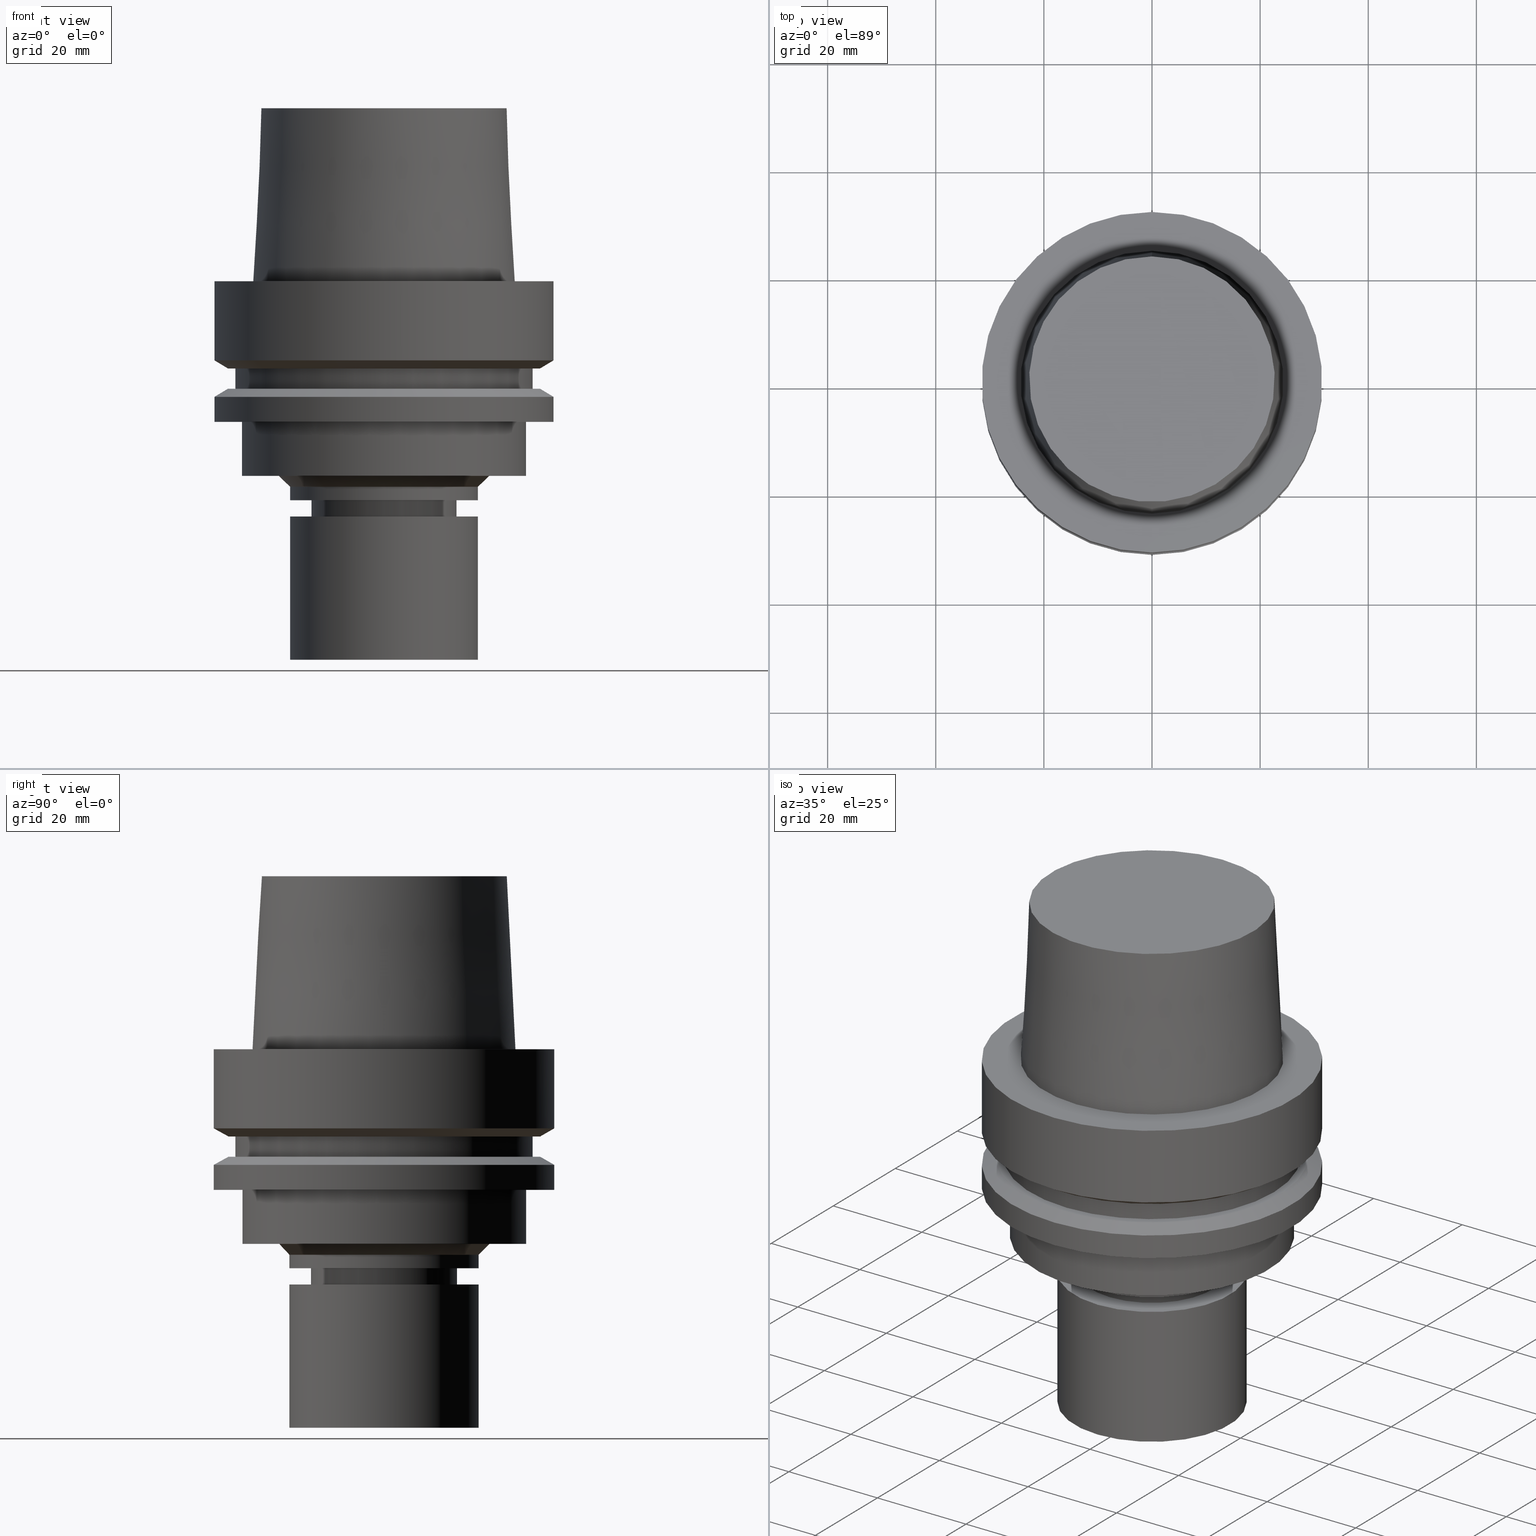
[diagram: canonical four-view strip — front | top / right | iso, engineering-drawing reading convention]
A machine part, canonical four-view strip (front | top / right | iso — engineering-drawing reading convention). The complete STEP part file that produces these views, byte-faithful:
ISO-10303-21;
HEADER;
FILE_DESCRIPTION((''),'1');
FILE_NAME('V:/90_\X2\53D65F9730C730FC30BF\X0\/00_\X2\6DE18DEF30C730FC30BF\X0\/ALL/HSK-BKUS\X2\52A05DE556F3\X0\_201801/HSK-A63-MEGAER/HSK-A63-MEGAER20-70NL.stp','2018-02-01T02:30:50',(''),(''),'Spatial Interop R21 SP3','Kubotek KeyCreator 2011 V10.0.2 (22737)',' ');
FILE_SCHEMA(('automotive_design'));
ENDSEC;
DATA;
#1=MECHANICAL_DESIGN_GEOMETRIC_PRESENTATION_REPRESENTATION(' ',(#14,#15,#16,#17,#18,#19,#20,#21,#22,#23,#24,#25,#26,#27,#28,#29,#30,#31,#32,#33,#34,#35,#36,#37,#38,#39,#40,#41,#42,#43,#44,#45,#46,#47,#48,#49,#50,#51,#52,#53,#54,#55,#56,#57,#58,#59,#60,#61),#10);
#2=PRODUCT_DEFINITION_CONTEXT('',#62,'design');
#3=APPLICATION_PROTOCOL_DEFINITION('INTERNATIONAL STANDARD','automotive_design',1994,#62);
#4=PRODUCT_CATEGORY_RELATIONSHIP('NONE','NONE',#63,#64);
#5=SHAPE_DEFINITION_REPRESENTATION(#65,#66);
#6=PRODUCT_DEFINITION_CONTEXT('',#67,'design');
#7=APPLICATION_PROTOCOL_DEFINITION('INTERNATIONAL STANDARD','automotive_design',1994,#67);
#8=PRODUCT_CATEGORY_RELATIONSHIP('NONE','NONE',#68,#69);
#9=SHAPE_DEFINITION_REPRESENTATION(#70,#71);
#10= (GEOMETRIC_REPRESENTATION_CONTEXT(3)GLOBAL_UNCERTAINTY_ASSIGNED_CONTEXT((#74))GLOBAL_UNIT_ASSIGNED_CONTEXT((#76,#77,#78))REPRESENTATION_CONTEXT('NONE','WORKSPACE'));
#14=STYLED_ITEM('',(#80,#81),#82);
#15=STYLED_ITEM('',(#83),#84);
#16=STYLED_ITEM('',(#85,#86),#87);
#17=STYLED_ITEM('',(#88),#89);
#18=STYLED_ITEM('',(#90),#91);
#19=STYLED_ITEM('',(#92),#93);
#20=STYLED_ITEM('',(#94),#95);
#21=STYLED_ITEM('',(#96,#97),#98);
#22=STYLED_ITEM('',(#99),#100);
#23=STYLED_ITEM('',(#101,#102),#103);
#24=STYLED_ITEM('',(#104),#105);
#25=STYLED_ITEM('',(#106),#107);
#26=STYLED_ITEM('',(#108,#109),#110);
#27=STYLED_ITEM('',(#111,#112),#113);
#28=STYLED_ITEM('',(#114,#115),#116);
#29=STYLED_ITEM('',(#117),#118);
#30=STYLED_ITEM('',(#119,#120),#121);
#31=STYLED_ITEM('',(#122),#123);
#32=STYLED_ITEM('',(#124,#125),#126);
#33=STYLED_ITEM('',(#127,#128),#129);
#34=STYLED_ITEM('',(#130),#131);
#35=STYLED_ITEM('',(#132),#133);
#36=STYLED_ITEM('',(#134,#135),#136);
#37=STYLED_ITEM('',(#137),#138);
#38=STYLED_ITEM('',(#139,#140),#141);
#39=STYLED_ITEM('',(#142,#143),#144);
#40=STYLED_ITEM('',(#145,#146),#147);
#41=STYLED_ITEM('',(#148),#149);
#42=STYLED_ITEM('',(#150,#151),#152);
#43=STYLED_ITEM('',(#153),#154);
#44=STYLED_ITEM('',(#155),#156);
#45=STYLED_ITEM('',(#157),#158);
#46=STYLED_ITEM('',(#159,#160),#161);
#47=STYLED_ITEM('',(#162,#163),#164);
#48=STYLED_ITEM('',(#165,#166),#167);
#49=STYLED_ITEM('',(#168,#169),#170);
#50=STYLED_ITEM('',(#171),#172);
#51=STYLED_ITEM('',(#173),#174);
#52=STYLED_ITEM('',(#175,#176),#177);
#53=STYLED_ITEM('',(#178,#179),#180);
#54=STYLED_ITEM('',(#181,#182),#183);
#55=STYLED_ITEM('',(#184),#185);
#56=STYLED_ITEM('',(#186),#187);
#57=STYLED_ITEM('',(#188),#189);
#58=STYLED_ITEM('',(#190,#191),#192);
#59=STYLED_ITEM('',(#193,#194),#195);
#60=STYLED_ITEM('',(#196,#197),#198);
#61=STYLED_ITEM('',(#199,#200),#201);
#62=APPLICATION_CONTEXT(' ');
#63=PRODUCT_CATEGORY('part','NONE');
#64=PRODUCT_RELATED_PRODUCT_CATEGORY('detail',' ',(#202));
#65=PRODUCT_DEFINITION_SHAPE('NONE','NONE',#203);
#66=ADVANCED_BREP_SHAPE_REPRESENTATION('Unnamed[1]',(#141,#204),#10);
#67=APPLICATION_CONTEXT(' ');
#68=PRODUCT_CATEGORY('part','NONE');
#69=PRODUCT_RELATED_PRODUCT_CATEGORY('detail',' ',(#205));
#70=PRODUCT_DEFINITION_SHAPE('NONE','NONE',#206);
#71=ADVANCED_BREP_SHAPE_REPRESENTATION('Unnamed[1]',(#82,#207),#10);
#74=UNCERTAINTY_MEASURE_WITH_UNIT(LENGTH_MEASURE(1.0E-006),#76,'','');
#76= (CONVERSION_BASED_UNIT('MILLIMETRE',#210)LENGTH_UNIT()NAMED_UNIT(#213));
#77= (NAMED_UNIT(#215)PLANE_ANGLE_UNIT()SI_UNIT($,.RADIAN.));
#78= (NAMED_UNIT(#215)SOLID_ANGLE_UNIT()SI_UNIT($,.STERADIAN.));
#80=PRESENTATION_STYLE_ASSIGNMENT((#221));
#81=PRESENTATION_STYLE_ASSIGNMENT((#222));
#82=MANIFOLD_SOLID_BREP('Unnamed[1]',#223);
#83=PRESENTATION_STYLE_ASSIGNMENT((#224));
#84=EDGE_CURVE('Unnamed[1]',#225,#225,#226,.T.);
#85=PRESENTATION_STYLE_ASSIGNMENT((#227));
#86=PRESENTATION_STYLE_ASSIGNMENT((#228));
#87=ADVANCED_FACE('Unnamed[1]',(#229,#230),#231,.T.);
#88=PRESENTATION_STYLE_ASSIGNMENT((#232));
#89=EDGE_CURVE('Unnamed[1]',#233,#233,#234,.T.);
#90=PRESENTATION_STYLE_ASSIGNMENT((#235));
#91=EDGE_CURVE('Unnamed[1]',#236,#236,#237,.T.);
#92=PRESENTATION_STYLE_ASSIGNMENT((#238));
#93=EDGE_CURVE('Unnamed[1]',#239,#239,#240,.T.);
#94=PRESENTATION_STYLE_ASSIGNMENT((#241));
#95=EDGE_CURVE('Unnamed[1]',#242,#242,#243,.T.);
#96=PRESENTATION_STYLE_ASSIGNMENT((#244));
#97=PRESENTATION_STYLE_ASSIGNMENT((#245));
#98=ADVANCED_FACE('Unnamed[1]',(#246,#247),#248,.T.);
#99=PRESENTATION_STYLE_ASSIGNMENT((#249));
#100=EDGE_CURVE('Unnamed[1]',#250,#250,#251,.T.);
#101=PRESENTATION_STYLE_ASSIGNMENT((#252));
#102=PRESENTATION_STYLE_ASSIGNMENT((#253));
#103=ADVANCED_FACE('Unnamed[1]',(#254,#255),#256,.T.);
#104=PRESENTATION_STYLE_ASSIGNMENT((#257));
#105=EDGE_CURVE('Unnamed[1]',#258,#258,#259,.T.);
#106=PRESENTATION_STYLE_ASSIGNMENT((#260));
#107=EDGE_CURVE('Unnamed[1]',#261,#261,#262,.T.);
#108=PRESENTATION_STYLE_ASSIGNMENT((#263));
#109=PRESENTATION_STYLE_ASSIGNMENT((#264));
#110=ADVANCED_FACE('Unnamed[1]',(#265),#266,.T.);
#111=PRESENTATION_STYLE_ASSIGNMENT((#267));
#112=PRESENTATION_STYLE_ASSIGNMENT((#268));
#113=ADVANCED_FACE('Unnamed[1]',(#269,#270),#271,.T.);
#114=PRESENTATION_STYLE_ASSIGNMENT((#272));
#115=PRESENTATION_STYLE_ASSIGNMENT((#273));
#116=ADVANCED_FACE('Unnamed[1]',(#274),#275,.T.);
#117=PRESENTATION_STYLE_ASSIGNMENT((#276));
#118=EDGE_CURVE('Unnamed[1]',#277,#277,#278,.T.);
#119=PRESENTATION_STYLE_ASSIGNMENT((#279));
#120=PRESENTATION_STYLE_ASSIGNMENT((#280));
#121=ADVANCED_FACE('Unnamed[1]',(#281,#282),#283,.T.);
#122=PRESENTATION_STYLE_ASSIGNMENT((#284));
#123=EDGE_CURVE('Unnamed[1]',#285,#285,#286,.T.);
#124=PRESENTATION_STYLE_ASSIGNMENT((#287));
#125=PRESENTATION_STYLE_ASSIGNMENT((#288));
#126=ADVANCED_FACE('Unnamed[1]',(#289),#290,.T.);
#127=PRESENTATION_STYLE_ASSIGNMENT((#291));
#128=PRESENTATION_STYLE_ASSIGNMENT((#292));
#129=ADVANCED_FACE('Unnamed[1]',(#293,#294),#295,.T.);
#130=PRESENTATION_STYLE_ASSIGNMENT((#296));
#131=EDGE_CURVE('Unnamed[1]',#297,#297,#298,.T.);
#132=PRESENTATION_STYLE_ASSIGNMENT((#299));
#133=EDGE_CURVE('Unnamed[1]',#300,#300,#301,.T.);
#134=PRESENTATION_STYLE_ASSIGNMENT((#302));
#135=PRESENTATION_STYLE_ASSIGNMENT((#303));
#136=ADVANCED_FACE('Unnamed[1]',(#304,#305),#306,.T.);
#137=PRESENTATION_STYLE_ASSIGNMENT((#307));
#138=EDGE_CURVE('Unnamed[1]',#308,#308,#309,.T.);
#139=PRESENTATION_STYLE_ASSIGNMENT((#310));
#140=PRESENTATION_STYLE_ASSIGNMENT((#311));
#141=MANIFOLD_SOLID_BREP('Unnamed[1]',#312);
#142=PRESENTATION_STYLE_ASSIGNMENT((#313));
#143=PRESENTATION_STYLE_ASSIGNMENT((#314));
#144=ADVANCED_FACE('Unnamed[1]',(#315,#316),#317,.T.);
#145=PRESENTATION_STYLE_ASSIGNMENT((#318));
#146=PRESENTATION_STYLE_ASSIGNMENT((#319));
#147=ADVANCED_FACE('Unnamed[1]',(#320,#321),#322,.T.);
#148=PRESENTATION_STYLE_ASSIGNMENT((#323));
#149=EDGE_CURVE('Unnamed[1]',#324,#324,#325,.T.);
#150=PRESENTATION_STYLE_ASSIGNMENT((#326));
#151=PRESENTATION_STYLE_ASSIGNMENT((#327));
#152=ADVANCED_FACE('Unnamed[1]',(#328,#329),#330,.T.);
#153=PRESENTATION_STYLE_ASSIGNMENT((#331));
#154=EDGE_CURVE('Unnamed[1]',#332,#332,#333,.T.);
#155=PRESENTATION_STYLE_ASSIGNMENT((#334));
#156=EDGE_CURVE('Unnamed[1]',#335,#335,#336,.T.);
#157=PRESENTATION_STYLE_ASSIGNMENT((#337));
#158=EDGE_CURVE('Unnamed[1]',#338,#338,#339,.T.);
#159=PRESENTATION_STYLE_ASSIGNMENT((#340));
#160=PRESENTATION_STYLE_ASSIGNMENT((#341));
#161=ADVANCED_FACE('Unnamed[1]',(#342,#343),#344,.T.);
#162=PRESENTATION_STYLE_ASSIGNMENT((#345));
#163=PRESENTATION_STYLE_ASSIGNMENT((#346));
#164=ADVANCED_FACE('Unnamed[1]',(#347,#348),#349,.T.);
#165=PRESENTATION_STYLE_ASSIGNMENT((#350));
#166=PRESENTATION_STYLE_ASSIGNMENT((#351));
#167=ADVANCED_FACE('Unnamed[1]',(#352,#353),#354,.T.);
#168=PRESENTATION_STYLE_ASSIGNMENT((#355));
#169=PRESENTATION_STYLE_ASSIGNMENT((#356));
#170=ADVANCED_FACE('Unnamed[1]',(#357,#358),#359,.T.);
#171=PRESENTATION_STYLE_ASSIGNMENT((#360));
#172=EDGE_CURVE('Unnamed[1]',#361,#361,#362,.T.);
#173=PRESENTATION_STYLE_ASSIGNMENT((#363));
#174=EDGE_CURVE('Unnamed[1]',#364,#364,#365,.T.);
#175=PRESENTATION_STYLE_ASSIGNMENT((#366));
#176=PRESENTATION_STYLE_ASSIGNMENT((#367));
#177=ADVANCED_FACE('Unnamed[1]',(#368),#369,.T.);
#178=PRESENTATION_STYLE_ASSIGNMENT((#370));
#179=PRESENTATION_STYLE_ASSIGNMENT((#371));
#180=ADVANCED_FACE('Unnamed[1]',(#372,#373),#374,.T.);
#181=PRESENTATION_STYLE_ASSIGNMENT((#375));
#182=PRESENTATION_STYLE_ASSIGNMENT((#376));
#183=ADVANCED_FACE('Unnamed[1]',(#377,#378),#379,.T.);
#184=PRESENTATION_STYLE_ASSIGNMENT((#380));
#185=EDGE_CURVE('Unnamed[1]',#381,#381,#382,.T.);
#186=PRESENTATION_STYLE_ASSIGNMENT((#383));
#187=EDGE_CURVE('Unnamed[1]',#384,#384,#385,.T.);
#188=PRESENTATION_STYLE_ASSIGNMENT((#386));
#189=EDGE_CURVE('Unnamed[1]',#387,#387,#388,.T.);
#190=PRESENTATION_STYLE_ASSIGNMENT((#389));
#191=PRESENTATION_STYLE_ASSIGNMENT((#390));
#192=ADVANCED_FACE('Unnamed[1]',(#391,#392),#393,.T.);
#193=PRESENTATION_STYLE_ASSIGNMENT((#394));
#194=PRESENTATION_STYLE_ASSIGNMENT((#395));
#195=ADVANCED_FACE('Unnamed[1]',(#396,#397),#398,.T.);
#196=PRESENTATION_STYLE_ASSIGNMENT((#399));
#197=PRESENTATION_STYLE_ASSIGNMENT((#400));
#198=ADVANCED_FACE('Unnamed[1]',(#401,#402),#403,.T.);
#199=PRESENTATION_STYLE_ASSIGNMENT((#404));
#200=PRESENTATION_STYLE_ASSIGNMENT((#405));
#201=ADVANCED_FACE('Unnamed[1]',(#406,#407),#408,.T.);
#202=PRODUCT('Unnamed[1]','Unnamed[1]','PART-Unnamed[1]-DESC',(#409));
#203=PRODUCT_DEFINITION('NONE','NONE',#410,#2);
#204=AXIS2_PLACEMENT_3D('',#411,#412,#413);
#205=PRODUCT('Unnamed[1]','Unnamed[1]','PART-Unnamed[1]-DESC',(#414));
#206=PRODUCT_DEFINITION('NONE','NONE',#415,#6);
#207=AXIS2_PLACEMENT_3D('',#416,#417,#418);
#210=LENGTH_MEASURE_WITH_UNIT(LENGTH_MEASURE(1.0),#419);
#213=DIMENSIONAL_EXPONENTS(1.0,0.0,0.0,0.0,0.0,0.0,0.0);
#215=DIMENSIONAL_EXPONENTS(0.0,0.0,0.0,0.0,0.0,0.0,0.0);
#221=SURFACE_STYLE_USAGE(.BOTH.,#420);
#222=CURVE_STYLE('',#421,POSITIVE_LENGTH_MEASURE(1000.0),#422);
#223=CLOSED_SHELL('',(#177,#126,#129));
#224=CURVE_STYLE('',#423,POSITIVE_LENGTH_MEASURE(1000.0),#424);
#225=VERTEX_POINT('',#425);
#226=CIRCLE('',#426,17.5);
#227=SURFACE_STYLE_USAGE(.BOTH.,#427);
#228=CURVE_STYLE('',#428,POSITIVE_LENGTH_MEASURE(1000.0),#429);
#229=FACE_BOUND('',#430,.T.);
#230=FACE_BOUND('',#431,.T.);
#231=CONICAL_SURFACE('',#432,30.1987976320959,1.04719755119657);
#232=CURVE_STYLE('',#433,POSITIVE_LENGTH_MEASURE(1000.0),#434);
#233=VERTEX_POINT('',#435);
#234=CIRCLE('',#436,31.5000000000001);
#235=CURVE_STYLE('',#437,POSITIVE_LENGTH_MEASURE(1000.0),#438);
#236=VERTEX_POINT('',#439);
#237=CIRCLE('',#440,19.4999999999997);
#238=CURVE_STYLE('',#441,POSITIVE_LENGTH_MEASURE(1000.0),#442);
#239=VERTEX_POINT('',#443);
#240=CIRCLE('',#444,12.4999999999999);
#241=CURVE_STYLE('',#445,POSITIVE_LENGTH_MEASURE(1000.0),#446);
#242=VERTEX_POINT('',#447);
#243=CIRCLE('',#448,31.5);
#244=SURFACE_STYLE_USAGE(.BOTH.,#449);
#245=CURVE_STYLE('',#450,POSITIVE_LENGTH_MEASURE(1000.0),#451);
#246=FACE_BOUND('',#452,.T.);
#247=FACE_BOUND('',#453,.T.);
#248=CONICAL_SURFACE('',#454,11.9499999999988,0.523598775598658);
#249=CURVE_STYLE('',#455,POSITIVE_LENGTH_MEASURE(1000.0),#456);
#250=VERTEX_POINT('',#457);
#251=CIRCLE('',#458,27.5);
#252=SURFACE_STYLE_USAGE(.BOTH.,#459);
#253=CURVE_STYLE('',#460,POSITIVE_LENGTH_MEASURE(1000.0),#461);
#254=FACE_BOUND('',#462,.T.);
#255=FACE_BOUND('',#463,.T.);
#256=CYLINDRICAL_SURFACE('',#464,13.4999999999956);
#257=CURVE_STYLE('',#465,POSITIVE_LENGTH_MEASURE(1000.0),#466);
#258=VERTEX_POINT('',#467);
#259=CIRCLE('',#468,28.8975952641919);
#260=CURVE_STYLE('',#469,POSITIVE_LENGTH_MEASURE(1000.0),#470);
#261=VERTEX_POINT('',#471);
#262=CIRCLE('',#472,17.5);
#263=SURFACE_STYLE_USAGE(.BOTH.,#473);
#264=CURVE_STYLE('',#474,POSITIVE_LENGTH_MEASURE(1000.0),#475);
#265=FACE_OUTER_BOUND('',#476,.T.);
#266=PLANE('',#477);
#267=SURFACE_STYLE_USAGE(.BOTH.,#478);
#268=CURVE_STYLE('',#479,POSITIVE_LENGTH_MEASURE(1000.0),#480);
#269=FACE_BOUND('',#481,.T.);
#270=FACE_BOUND('',#482,.T.);
#271=CYLINDRICAL_SURFACE('',#483,27.4999999999994);
#272=SURFACE_STYLE_USAGE(.BOTH.,#484);
#273=CURVE_STYLE('',#485,POSITIVE_LENGTH_MEASURE(1000.0),#486);
#274=FACE_OUTER_BOUND('',#487,.T.);
#275=PLANE('',#488);
#276=CURVE_STYLE('',#489,POSITIVE_LENGTH_MEASURE(1000.0),#490);
#277=VERTEX_POINT('',#491);
#278=CIRCLE('',#492,27.4999999999989);
#279=SURFACE_STYLE_USAGE(.BOTH.,#493);
#280=CURVE_STYLE('',#494,POSITIVE_LENGTH_MEASURE(1000.0),#495);
#281=FACE_BOUND('',#496,.T.);
#282=FACE_BOUND('',#497,.T.);
#283=CYLINDRICAL_SURFACE('',#498,31.4999999999999);
#284=CURVE_STYLE('',#499,POSITIVE_LENGTH_MEASURE(1000.0),#500);
#285=VERTEX_POINT('',#501);
#286=CIRCLE('',#502,26.3);
#287=SURFACE_STYLE_USAGE(.BOTH.,#503);
#288=CURVE_STYLE('',#504,POSITIVE_LENGTH_MEASURE(1000.0),#505);
#289=FACE_OUTER_BOUND('',#506,.T.);
#290=PLANE('',#507);
#291=SURFACE_STYLE_USAGE(.BOTH.,#508);
#292=CURVE_STYLE('',#509,POSITIVE_LENGTH_MEASURE(1000.0),#510);
#293=FACE_BOUND('',#511,.T.);
#294=FACE_BOUND('',#512,.T.);
#295=CYLINDRICAL_SURFACE('',#513,17.5);
#296=CURVE_STYLE('',#514,POSITIVE_LENGTH_MEASURE(1000.0),#515);
#297=VERTEX_POINT('',#516);
#298=CIRCLE('',#517,11.3999999999977);
#299=CURVE_STYLE('',#518,POSITIVE_LENGTH_MEASURE(1000.0),#519);
#300=VERTEX_POINT('',#520);
#301=CIRCLE('',#521,24.315);
#302=SURFACE_STYLE_USAGE(.BOTH.,#522);
#303=CURVE_STYLE('',#523,POSITIVE_LENGTH_MEASURE(1000.0),#524);
#304=FACE_BOUND('',#525,.T.);
#305=FACE_BOUND('',#526,.T.);
#306=CONICAL_SURFACE('',#527,30.1987976320959,1.04719755119657);
#307=CURVE_STYLE('',#528,POSITIVE_LENGTH_MEASURE(1000.0),#529);
#308=VERTEX_POINT('',#530);
#309=CIRCLE('',#531,26.3);
#310=SURFACE_STYLE_USAGE(.BOTH.,#532);
#311=CURVE_STYLE('',#533,POSITIVE_LENGTH_MEASURE(1000.0),#534);
#312=CLOSED_SHELL('',(#116,#98,#180,#152,#103,#144,#201,#161,#170,#192,#195,#121,#87,#164,#113,#167,#136,#198,#147,#183,#110));
#313=SURFACE_STYLE_USAGE(.BOTH.,#535);
#314=CURVE_STYLE('',#536,POSITIVE_LENGTH_MEASURE(1000.0),#537);
#315=FACE_OUTER_BOUND('',#538,.T.);
#316=FACE_BOUND('',#539,.T.);
#317=PLANE('',#540);
#318=SURFACE_STYLE_USAGE(.BOTH.,#541);
#319=CURVE_STYLE('',#542,POSITIVE_LENGTH_MEASURE(1000.0),#543);
#320=FACE_BOUND('',#544,.T.);
#321=FACE_OUTER_BOUND('',#545,.T.);
#322=PLANE('',#546);
#323=CURVE_STYLE('',#547,POSITIVE_LENGTH_MEASURE(1000.0),#548);
#324=VERTEX_POINT('',#549);
#325=CIRCLE('',#550,28.8975952641919);
#326=SURFACE_STYLE_USAGE(.BOTH.,#551);
#327=CURVE_STYLE('',#552,POSITIVE_LENGTH_MEASURE(1000.0),#553);
#328=FACE_BOUND('',#554,.T.);
#329=FACE_BOUND('',#555,.T.);
#330=CONICAL_SURFACE('',#556,13.0000000000002,1.04719755119485);
#331=CURVE_STYLE('',#557,POSITIVE_LENGTH_MEASURE(1000.0),#558);
#332=VERTEX_POINT('',#559);
#333=CIRCLE('',#560,12.4999999999998);
#334=CURVE_STYLE('',#561,POSITIVE_LENGTH_MEASURE(1000.0),#562);
#335=VERTEX_POINT('',#563);
#336=CIRCLE('',#564,17.4999999999997);
#337=CURVE_STYLE('',#565,POSITIVE_LENGTH_MEASURE(1000.0),#566);
#338=VERTEX_POINT('',#567);
#339=CIRCLE('',#568,17.4999999999997);
#340=SURFACE_STYLE_USAGE(.BOTH.,#569);
#341=CURVE_STYLE('',#570,POSITIVE_LENGTH_MEASURE(1000.0),#571);
#342=FACE_BOUND('',#572,.T.);
#343=FACE_BOUND('',#573,.T.);
#344=CONICAL_SURFACE('',#574,18.4999999999997,0.785398163397434);
#345=SURFACE_STYLE_USAGE(.BOTH.,#575);
#346=CURVE_STYLE('',#576,POSITIVE_LENGTH_MEASURE(1000.0),#577);
#347=FACE_BOUND('',#578,.T.);
#348=FACE_OUTER_BOUND('',#579,.T.);
#349=PLANE('',#580);
#350=SURFACE_STYLE_USAGE(.BOTH.,#581);
#351=CURVE_STYLE('',#582,POSITIVE_LENGTH_MEASURE(1000.0),#583);
#352=FACE_OUTER_BOUND('',#584,.T.);
#353=FACE_BOUND('',#585,.T.);
#354=PLANE('',#586);
#355=SURFACE_STYLE_USAGE(.BOTH.,#587);
#356=CURVE_STYLE('',#588,POSITIVE_LENGTH_MEASURE(1000.0),#589);
#357=FACE_OUTER_BOUND('',#590,.T.);
#358=FACE_BOUND('',#591,.T.);
#359=PLANE('',#592);
#360=CURVE_STYLE('',#593,POSITIVE_LENGTH_MEASURE(1000.0),#594);
#361=VERTEX_POINT('',#595);
#362=CIRCLE('',#596,13.5000000000005);
#363=CURVE_STYLE('',#597,POSITIVE_LENGTH_MEASURE(1000.0),#598);
#364=VERTEX_POINT('',#599);
#365=CIRCLE('',#600,22.715);
#366=SURFACE_STYLE_USAGE(.BOTH.,#601);
#367=CURVE_STYLE('',#602,POSITIVE_LENGTH_MEASURE(1000.0),#603);
#368=FACE_OUTER_BOUND('',#604,.T.);
#369=PLANE('',#605);
#370=SURFACE_STYLE_USAGE(.BOTH.,#606);
#371=CURVE_STYLE('',#607,POSITIVE_LENGTH_MEASURE(1000.0),#608);
#372=FACE_BOUND('',#609,.T.);
#373=FACE_BOUND('',#610,.T.);
#374=CYLINDRICAL_SURFACE('',#611,12.4999999999999);
#375=SURFACE_STYLE_USAGE(.BOTH.,#612);
#376=CURVE_STYLE('',#613,POSITIVE_LENGTH_MEASURE(1000.0),#614);
#377=FACE_BOUND('',#615,.T.);
#378=FACE_BOUND('',#616,.T.);
#379=CONICAL_SURFACE('',#617,23.515,0.0499583957219433);
#380=CURVE_STYLE('',#618,POSITIVE_LENGTH_MEASURE(1000.0),#619);
#381=VERTEX_POINT('',#620);
#382=CIRCLE('',#621,13.4999999999908);
#383=CURVE_STYLE('',#622,POSITIVE_LENGTH_MEASURE(1000.0),#623);
#384=VERTEX_POINT('',#624);
#385=CIRCLE('',#625,31.5);
#386=CURVE_STYLE('',#626,POSITIVE_LENGTH_MEASURE(1000.0),#627);
#387=VERTEX_POINT('',#628);
#388=CIRCLE('',#629,31.4999999999998);
#389=SURFACE_STYLE_USAGE(.BOTH.,#630);
#390=CURVE_STYLE('',#631,POSITIVE_LENGTH_MEASURE(1000.0),#632);
#391=FACE_BOUND('',#633,.T.);
#392=FACE_BOUND('',#634,.T.);
#393=CYLINDRICAL_SURFACE('',#635,26.3);
#394=SURFACE_STYLE_USAGE(.BOTH.,#636);
#395=CURVE_STYLE('',#637,POSITIVE_LENGTH_MEASURE(1000.0),#638);
#396=FACE_OUTER_BOUND('',#639,.T.);
#397=FACE_BOUND('',#640,.T.);
#398=PLANE('',#641);
#399=SURFACE_STYLE_USAGE(.BOTH.,#642);
#400=CURVE_STYLE('',#643,POSITIVE_LENGTH_MEASURE(1000.0),#644);
#401=FACE_BOUND('',#645,.T.);
#402=FACE_BOUND('',#646,.T.);
#403=CYLINDRICAL_SURFACE('',#647,31.5);
#404=SURFACE_STYLE_USAGE(.BOTH.,#648);
#405=CURVE_STYLE('',#649,POSITIVE_LENGTH_MEASURE(1000.0),#650);
#406=FACE_BOUND('',#651,.T.);
#407=FACE_BOUND('',#652,.T.);
#408=CYLINDRICAL_SURFACE('',#653,17.4999999999997);
#409=PRODUCT_CONTEXT('',#62,'mechanical');
#410=PRODUCT_DEFINITION_FORMATION_WITH_SPECIFIED_SOURCE(' ','NONE',#202,.NOT_KNOWN.);
#411=CARTESIAN_POINT('',(0.0,0.0,0.0));
#412=DIRECTION('',(0.0,0.0,1.0));
#413=DIRECTION('',(1.0,0.0,0.0));
#414=PRODUCT_CONTEXT('',#67,'mechanical');
#415=PRODUCT_DEFINITION_FORMATION_WITH_SPECIFIED_SOURCE(' ','NONE',#205,.NOT_KNOWN.);
#416=CARTESIAN_POINT('',(0.0,0.0,0.0));
#417=DIRECTION('',(0.0,0.0,1.0));
#418=DIRECTION('',(1.0,0.0,0.0));
#419= (NAMED_UNIT(#213)LENGTH_UNIT()SI_UNIT(.MILLI.,.METRE.));
#420=SURFACE_SIDE_STYLE('',(#655));
#421=DRAUGHTING_PRE_DEFINED_CURVE_FONT('continuous');
#422=COLOUR_RGB('',0.0,1.0,0.0);
#423=DRAUGHTING_PRE_DEFINED_CURVE_FONT('continuous');
#424=COLOUR_RGB('',0.0,1.0,0.0);
#425=CARTESIAN_POINT('',(2.66360772247685E-015,17.5,-43.5000152587891));
#426=AXIS2_PLACEMENT_3D('',#656,#657,#658);
#427=SURFACE_SIDE_STYLE('',(#659));
#428=DRAUGHTING_PRE_DEFINED_CURVE_FONT('continuous');
#429=COLOUR_RGB('',0.0,1.0,0.0);
#430=EDGE_LOOP('',(#660));
#431=EDGE_LOOP('',(#661));
#432=AXIS2_PLACEMENT_3D('',#662,#663,#664);
#433=DRAUGHTING_PRE_DEFINED_CURVE_FONT('continuous');
#434=COLOUR_RGB('',0.0,1.0,0.0);
#435=CARTESIAN_POINT('',(-3.88267476788467E-031,31.5000000000001,3.85763741731417E-015));
#436=AXIS2_PLACEMENT_3D('',#665,#666,#667);
#437=DRAUGHTING_PRE_DEFINED_CURVE_FONT('continuous');
#438=COLOUR_RGB('',0.0,1.0,0.0);
#439=CARTESIAN_POINT('',(2.20436423846524E-015,19.4999999999997,-36.0));
#440=AXIS2_PLACEMENT_3D('',#668,#669,#670);
#441=DRAUGHTING_PRE_DEFINED_CURVE_FONT('continuous');
#442=COLOUR_RGB('',0.0,1.0,0.0);
#443=CARTESIAN_POINT('',(2.87177685173178E-015,12.4999999999999,-46.8996751345975));
#444=AXIS2_PLACEMENT_3D('',#671,#672,#673);
#445=DRAUGHTING_PRE_DEFINED_CURVE_FONT('continuous');
#446=COLOUR_RGB('',0.0,1.0,0.0);
#447=CARTESIAN_POINT('',(1.30899429078397E-015,31.5,-21.3774990747592));
#448=AXIS2_PLACEMENT_3D('',#674,#675,#676);
#449=SURFACE_SIDE_STYLE('',(#677));
#450=DRAUGHTING_PRE_DEFINED_CURVE_FONT('continuous');
#451=COLOUR_RGB('',0.0,1.0,0.0);
#452=EDGE_LOOP('',(#678));
#453=EDGE_LOOP('',(#679));
#454=AXIS2_PLACEMENT_3D('',#680,#681,#682);
#455=DRAUGHTING_PRE_DEFINED_CURVE_FONT('continuous');
#456=COLOUR_RGB('',0.0,1.0,0.0);
#457=CARTESIAN_POINT('',(9.87371481812537E-016,27.5,-16.1249999999997));
#458=AXIS2_PLACEMENT_3D('',#683,#684,#685);
#459=SURFACE_SIDE_STYLE('',(#686));
#460=DRAUGHTING_PRE_DEFINED_CURVE_FONT('continuous');
#461=COLOUR_RGB('',0.0,1.0,0.0);
#462=EDGE_LOOP('',(#687));
#463=EDGE_LOOP('',(#688));
#464=AXIS2_PLACEMENT_3D('',#689,#690,#691);
#465=DRAUGHTING_PRE_DEFINED_CURVE_FONT('continuous');
#466=COLOUR_RGB('',0.0,1.0,0.0);
#467=CARTESIAN_POINT('',(1.21699275665268E-015,28.8975952641919,-19.875));
#468=AXIS2_PLACEMENT_3D('',#692,#693,#694);
#469=DRAUGHTING_PRE_DEFINED_CURVE_FONT('continuous');
#470=COLOUR_RGB('',0.0,1.0,0.0);
#471=CARTESIAN_POINT('',(4.28626379701573E-015,17.5,-69.9999999999999));
#472=AXIS2_PLACEMENT_3D('',#695,#696,#697);
#473=SURFACE_SIDE_STYLE('',(#698));
#474=DRAUGHTING_PRE_DEFINED_CURVE_FONT('continuous');
#475=COLOUR_RGB('',0.0,1.0,0.0);
#476=EDGE_LOOP('',(#699));
#477=AXIS2_PLACEMENT_3D('',#700,#701,#702);
#478=SURFACE_SIDE_STYLE('',(#703));
#479=DRAUGHTING_PRE_DEFINED_CURVE_FONT('continuous');
#480=COLOUR_RGB('',0.0,1.0,0.0);
#481=EDGE_LOOP('',(#704));
#482=EDGE_LOOP('',(#705));
#483=AXIS2_PLACEMENT_3D('',#706,#707,#708);
#484=SURFACE_SIDE_STYLE('',(#709));
#485=DRAUGHTING_PRE_DEFINED_CURVE_FONT('continuous');
#486=COLOUR_RGB('',0.0,1.0,0.0);
#487=EDGE_LOOP('',(#710));
#488=AXIS2_PLACEMENT_3D('',#711,#712,#713);
#489=DRAUGHTING_PRE_DEFINED_CURVE_FONT('continuous');
#490=COLOUR_RGB('',0.0,1.0,0.0);
#491=CARTESIAN_POINT('',(1.21699275665276E-015,27.4999999999989,-19.8750000000013));
#492=AXIS2_PLACEMENT_3D('',#714,#715,#716);
#493=SURFACE_SIDE_STYLE('',(#717));
#494=DRAUGHTING_PRE_DEFINED_CURVE_FONT('continuous');
#495=COLOUR_RGB('',0.0,1.0,0.0);
#496=EDGE_LOOP('',(#718));
#497=EDGE_LOOP('',(#719));
#498=AXIS2_PLACEMENT_3D('',#720,#721,#722);
#499=DRAUGHTING_PRE_DEFINED_CURVE_FONT('continuous');
#500=COLOUR_RGB('',0.0,1.0,0.0);
#501=CARTESIAN_POINT('',(2.20436423846524E-015,26.3,-36.0000000000001));
#502=AXIS2_PLACEMENT_3D('',#723,#724,#725);
#503=SURFACE_SIDE_STYLE('',(#726));
#504=DRAUGHTING_PRE_DEFINED_CURVE_FONT('continuous');
#505=COLOUR_RGB('',0.0,1.0,0.0);
#506=EDGE_LOOP('',(#727));
#507=AXIS2_PLACEMENT_3D('',#728,#729,#730);
#508=SURFACE_SIDE_STYLE('',(#731));
#509=DRAUGHTING_PRE_DEFINED_CURVE_FONT('continuous');
#510=COLOUR_RGB('',0.0,1.0,0.0);
#511=EDGE_LOOP('',(#732));
#512=EDGE_LOOP('',(#733));
#513=AXIS2_PLACEMENT_3D('',#734,#735,#736);
#514=DRAUGHTING_PRE_DEFINED_CURVE_FONT('continuous');
#515=COLOUR_RGB('',0.0,1.0,0.0);
#516=CARTESIAN_POINT('',(3.68618686543355E-015,11.3999999999978,-60.2000000000003));
#517=AXIS2_PLACEMENT_3D('',#737,#738,#739);
#518=DRAUGHTING_PRE_DEFINED_CURVE_FONT('continuous');
#519=COLOUR_RGB('',0.0,1.0,0.0);
#520=CARTESIAN_POINT('',(-2.99705514225764E-031,24.315,2.97772869212679E-015));
#521=AXIS2_PLACEMENT_3D('',#740,#741,#742);
#522=SURFACE_SIDE_STYLE('',(#743));
#523=DRAUGHTING_PRE_DEFINED_CURVE_FONT('continuous');
#524=COLOUR_RGB('',0.0,1.0,0.0);
#525=EDGE_LOOP('',(#744));
#526=EDGE_LOOP('',(#745));
#527=AXIS2_PLACEMENT_3D('',#746,#747,#748);
#528=DRAUGHTING_PRE_DEFINED_CURVE_FONT('continuous');
#529=COLOUR_RGB('',0.0,1.0,0.0);
#530=CARTESIAN_POINT('',(1.59204083889154E-015,26.3,-25.9999999999997));
#531=AXIS2_PLACEMENT_3D('',#749,#750,#751);
#532=SURFACE_SIDE_STYLE('',(#752));
#533=DRAUGHTING_PRE_DEFINED_CURVE_FONT('continuous');
#534=COLOUR_RGB('',0.0,1.0,0.0);
#535=SURFACE_SIDE_STYLE('',(#753));
#536=DRAUGHTING_PRE_DEFINED_CURVE_FONT('continuous');
#537=COLOUR_RGB('',0.0,1.0,0.0);
#538=EDGE_LOOP('',(#754));
#539=EDGE_LOOP('',(#755));
#540=AXIS2_PLACEMENT_3D('',#756,#757,#758);
#541=SURFACE_SIDE_STYLE('',(#759));
#542=DRAUGHTING_PRE_DEFINED_CURVE_FONT('continuous');
#543=COLOUR_RGB('',0.0,1.0,0.0);
#544=EDGE_LOOP('',(#760));
#545=EDGE_LOOP('',(#761));
#546=AXIS2_PLACEMENT_3D('',#762,#763,#764);
#547=DRAUGHTING_PRE_DEFINED_CURVE_FONT('continuous');
#548=COLOUR_RGB('',0.0,1.0,0.0);
#549=CARTESIAN_POINT('',(9.87371481812551E-016,28.8975952641919,-16.125));
#550=AXIS2_PLACEMENT_3D('',#765,#766,#767);
#551=SURFACE_SIDE_STYLE('',(#768));
#552=DRAUGHTING_PRE_DEFINED_CURVE_FONT('continuous');
#553=COLOUR_RGB('',0.0,1.0,0.0);
#554=EDGE_LOOP('',(#769));
#555=EDGE_LOOP('',(#770));
#556=AXIS2_PLACEMENT_3D('',#771,#772,#773);
#557=DRAUGHTING_PRE_DEFINED_CURVE_FONT('continuous');
#558=COLOUR_RGB('',0.0,1.0,0.0);
#559=CARTESIAN_POINT('',(3.56952358917369E-015,12.4999999999998,-58.2947441116725));
#560=AXIS2_PLACEMENT_3D('',#774,#775,#776);
#561=DRAUGHTING_PRE_DEFINED_CURVE_FONT('continuous');
#562=COLOUR_RGB('',0.0,1.0,0.0);
#563=CARTESIAN_POINT('',(2.32682891837998E-015,17.4999999999997,-38.0000000000001));
#564=AXIS2_PLACEMENT_3D('',#777,#778,#779);
#565=DRAUGHTING_PRE_DEFINED_CURVE_FONT('continuous');
#566=COLOUR_RGB('',0.0,1.0,0.0);
#567=CARTESIAN_POINT('',(2.47990976827338E-015,17.4999999999997,-40.4999999999998));
#568=AXIS2_PLACEMENT_3D('',#780,#781,#782);
#569=SURFACE_SIDE_STYLE('',(#783));
#570=DRAUGHTING_PRE_DEFINED_CURVE_FONT('continuous');
#571=COLOUR_RGB('',0.0,1.0,0.0);
#572=EDGE_LOOP('',(#784));
#573=EDGE_LOOP('',(#785));
#574=AXIS2_PLACEMENT_3D('',#786,#787,#788);
#575=SURFACE_SIDE_STYLE('',(#789));
#576=DRAUGHTING_PRE_DEFINED_CURVE_FONT('continuous');
#577=COLOUR_RGB('',0.0,1.0,0.0);
#578=EDGE_LOOP('',(#790));
#579=EDGE_LOOP('',(#791));
#580=AXIS2_PLACEMENT_3D('',#792,#793,#794);
#581=SURFACE_SIDE_STYLE('',(#795));
#582=DRAUGHTING_PRE_DEFINED_CURVE_FONT('continuous');
#583=COLOUR_RGB('',0.0,1.0,0.0);
#584=EDGE_LOOP('',(#796));
#585=EDGE_LOOP('',(#797));
#586=AXIS2_PLACEMENT_3D('',#798,#799,#800);
#587=SURFACE_SIDE_STYLE('',(#801));
#588=DRAUGHTING_PRE_DEFINED_CURVE_FONT('continuous');
#589=COLOUR_RGB('',0.0,1.0,0.0);
#590=EDGE_LOOP('',(#802));
#591=EDGE_LOOP('',(#803));
#592=AXIS2_PLACEMENT_3D('',#804,#805,#806);
#593=DRAUGHTING_PRE_DEFINED_CURVE_FONT('continuous');
#594=COLOUR_RGB('',0.0,1.0,0.0);
#595=CARTESIAN_POINT('',(2.83642434377412E-015,13.5000000000005,-46.3223248654052));
#596=AXIS2_PLACEMENT_3D('',#807,#808,#809);
#597=DRAUGHTING_PRE_DEFINED_CURVE_FONT('continuous');
#598=COLOUR_RGB('',0.0,1.0,0.0);
#599=CARTESIAN_POINT('',(-1.95943487863576E-015,22.715,32.0));
#600=AXIS2_PLACEMENT_3D('',#810,#811,#812);
#601=SURFACE_SIDE_STYLE('',(#813));
#602=DRAUGHTING_PRE_DEFINED_CURVE_FONT('continuous');
#603=COLOUR_RGB('',0.0,1.0,0.0);
#604=EDGE_LOOP('',(#814));
#605=AXIS2_PLACEMENT_3D('',#815,#816,#817);
#606=SURFACE_SIDE_STYLE('',(#818));
#607=DRAUGHTING_PRE_DEFINED_CURVE_FONT('continuous');
#608=COLOUR_RGB('',0.0,1.0,0.0);
#609=EDGE_LOOP('',(#819));
#610=EDGE_LOOP('',(#820));
#611=AXIS2_PLACEMENT_3D('',#821,#822,#823);
#612=SURFACE_SIDE_STYLE('',(#824));
#613=DRAUGHTING_PRE_DEFINED_CURVE_FONT('continuous');
#614=COLOUR_RGB('',0.0,1.0,0.0);
#615=EDGE_LOOP('',(#825));
#616=EDGE_LOOP('',(#826));
#617=AXIS2_PLACEMENT_3D('',#827,#828,#829);
#618=DRAUGHTING_PRE_DEFINED_CURVE_FONT('continuous');
#619=COLOUR_RGB('',0.0,1.0,0.0);
#620=CARTESIAN_POINT('',(2.47990976827338E-015,13.4999999999908,-40.4999999999998));
#621=AXIS2_PLACEMENT_3D('',#830,#831,#832);
#622=DRAUGHTING_PRE_DEFINED_CURVE_FONT('continuous');
#623=COLOUR_RGB('',0.0,1.0,0.0);
#624=CARTESIAN_POINT('',(8.95369947681261E-016,31.5,-14.6225009252407));
#625=AXIS2_PLACEMENT_3D('',#833,#834,#835);
#626=DRAUGHTING_PRE_DEFINED_CURVE_FONT('continuous');
#627=COLOUR_RGB('',0.0,1.0,0.0);
#628=CARTESIAN_POINT('',(1.59204083889155E-015,31.4999999999998,-25.9999999999999));
#629=AXIS2_PLACEMENT_3D('',#836,#837,#838);
#630=SURFACE_SIDE_STYLE('',(#839));
#631=DRAUGHTING_PRE_DEFINED_CURVE_FONT('continuous');
#632=COLOUR_RGB('',0.0,1.0,0.0);
#633=EDGE_LOOP('',(#840));
#634=EDGE_LOOP('',(#841));
#635=AXIS2_PLACEMENT_3D('',#842,#843,#844);
#636=SURFACE_SIDE_STYLE('',(#845));
#637=DRAUGHTING_PRE_DEFINED_CURVE_FONT('continuous');
#638=COLOUR_RGB('',0.0,1.0,0.0);
#639=EDGE_LOOP('',(#846));
#640=EDGE_LOOP('',(#847));
#641=AXIS2_PLACEMENT_3D('',#848,#849,#850);
#642=SURFACE_SIDE_STYLE('',(#851));
#643=DRAUGHTING_PRE_DEFINED_CURVE_FONT('continuous');
#644=COLOUR_RGB('',0.0,1.0,0.0);
#645=EDGE_LOOP('',(#852));
#646=EDGE_LOOP('',(#853));
#647=AXIS2_PLACEMENT_3D('',#854,#855,#856);
#648=SURFACE_SIDE_STYLE('',(#857));
#649=DRAUGHTING_PRE_DEFINED_CURVE_FONT('continuous');
#650=COLOUR_RGB('',0.0,1.0,0.0);
#651=EDGE_LOOP('',(#858));
#652=EDGE_LOOP('',(#859));
#653=AXIS2_PLACEMENT_3D('',#860,#861,#862);
#655=SURFACE_STYLE_FILL_AREA(#863);
#656=CARTESIAN_POINT('',(2.66360772247685E-015,5.32721544495371E-015,-43.5000152587891));
#657=DIRECTION('',(6.12323399573677E-017,1.22464679914735E-016,-1.0));
#658=DIRECTION('',(-1.23259516440783E-032,1.0,1.22464679914735E-016));
#659=SURFACE_STYLE_FILL_AREA(#864);
#660=ORIENTED_EDGE('',*,*,#105,.F.);
#661=ORIENTED_EDGE('',*,*,#95,.T.);
#662=CARTESIAN_POINT('',(1.26299352371833E-015,2.52598704743665E-015,-20.6262495373796));
#663=DIRECTION('',(6.12323399573677E-017,1.22464679914735E-016,-1.0));
#664=DIRECTION('',(-1.23259516440783E-032,1.0,1.22464679914735E-016));
#665=CARTESIAN_POINT('',(0.0,0.0,0.0));
#666=DIRECTION('',(-6.12323399573677E-017,-1.22464679914735E-016,1.0));
#667=DIRECTION('',(-1.23259516440783E-032,1.0,1.22464679914735E-016));
#668=CARTESIAN_POINT('',(2.20436423846524E-015,4.40872847693048E-015,-36.0));
#669=DIRECTION('',(-6.12323399573677E-017,-1.22464679914735E-016,1.0));
#670=DIRECTION('',(-1.23259516440783E-032,1.0,1.22464679914735E-016));
#671=CARTESIAN_POINT('',(2.87177685173178E-015,5.74355370346355E-015,-46.8996751345975));
#672=DIRECTION('',(-6.12323399573677E-017,-1.22464679914735E-016,1.0));
#673=DIRECTION('',(-1.23259516440783E-032,1.0,1.22464679914735E-016));
#674=CARTESIAN_POINT('',(1.30899429078397E-015,2.61798858156794E-015,-21.3774990747592));
#675=DIRECTION('',(-6.12323399573677E-017,-1.22464679914735E-016,1.0));
#676=DIRECTION('',(-1.23259516440783E-032,1.0,1.22464679914735E-016));
#677=SURFACE_STYLE_FILL_AREA(#865);
#678=ORIENTED_EDGE('',*,*,#154,.F.);
#679=ORIENTED_EDGE('',*,*,#131,.T.);
#680=CARTESIAN_POINT('',(3.62785522730362E-015,7.25571045460724E-015,-59.2473720558364));
#681=DIRECTION('',(-6.12323399573677E-017,-1.22464679914735E-016,1.0));
#682=DIRECTION('',(-1.23259516440783E-032,1.0,1.22464679914735E-016));
#683=CARTESIAN_POINT('',(9.87371481812538E-016,1.97474296362508E-015,-16.1249999999997));
#684=DIRECTION('',(-6.12323399573677E-017,-1.22464679914735E-016,1.0));
#685=DIRECTION('',(-1.23259516440783E-032,1.0,1.22464679914735E-016));
#686=SURFACE_STYLE_FILL_AREA(#866);
#687=ORIENTED_EDGE('',*,*,#185,.F.);
#688=ORIENTED_EDGE('',*,*,#172,.T.);
#689=CARTESIAN_POINT('',(2.65816705602375E-015,5.31633411204749E-015,-43.4111624327025));
#690=DIRECTION('',(-6.12323399573677E-017,-1.22464679914735E-016,1.0));
#691=DIRECTION('',(-1.23259516440783E-032,1.0,1.22464679914735E-016));
#692=CARTESIAN_POINT('',(1.21699275665268E-015,2.43398551330536E-015,-19.875));
#693=DIRECTION('',(-6.12323399573677E-017,-1.22464679914735E-016,1.0));
#694=DIRECTION('',(-1.23259516440783E-032,1.0,1.22464679914735E-016));
#695=CARTESIAN_POINT('',(4.28626379701573E-015,8.57252759403146E-015,-69.9999999999999));
#696=DIRECTION('',(6.12323399573677E-017,1.22464679914735E-016,-1.0));
#697=DIRECTION('',(-1.23259516440783E-032,1.0,1.22464679914735E-016));
#698=SURFACE_STYLE_FILL_AREA(#867);
#699=ORIENTED_EDGE('',*,*,#174,.T.);
#700=CARTESIAN_POINT('',(-1.95943487863576E-015,11.3575,32.0));
#701=DIRECTION('',(-6.12323399573677E-017,9.72362339746437E-016,1.0));
#702=DIRECTION('',(5.47128686183263E-032,1.0,-9.72362339746437E-016));
#703=SURFACE_STYLE_FILL_AREA(#868);
#704=ORIENTED_EDGE('',*,*,#100,.F.);
#705=ORIENTED_EDGE('',*,*,#118,.T.);
#706=CARTESIAN_POINT('',(1.10218211923265E-015,2.2043642384653E-015,-18.0000000000005));
#707=DIRECTION('',(-6.12323399573677E-017,-1.22464679914735E-016,1.0));
#708=DIRECTION('',(-1.23259516440783E-032,1.0,1.22464679914735E-016));
#709=SURFACE_STYLE_FILL_AREA(#869);
#710=ORIENTED_EDGE('',*,*,#131,.F.);
#711=CARTESIAN_POINT('',(3.68618686543354E-015,5.69999999999888,-60.2000000000002));
#712=DIRECTION('',(6.12323399573677E-017,-1.67061790617752E-014,-1.0));
#713=DIRECTION('',(-1.01813128296851E-030,-1.0,1.67061790617752E-014));
#714=CARTESIAN_POINT('',(1.21699275665276E-015,2.43398551330552E-015,-19.8750000000013));
#715=DIRECTION('',(-6.12323399573677E-017,-1.22464679914735E-016,1.0));
#716=DIRECTION('',(-1.23259516440783E-032,1.0,1.22464679914735E-016));
#717=SURFACE_STYLE_FILL_AREA(#870);
#718=ORIENTED_EDGE('',*,*,#95,.F.);
#719=ORIENTED_EDGE('',*,*,#189,.T.);
#720=CARTESIAN_POINT('',(1.45051756483776E-015,2.90103512967552E-015,-23.6887495373796));
#721=DIRECTION('',(-6.12323399573677E-017,-1.22464679914735E-016,1.0));
#722=DIRECTION('',(-1.23259516440783E-032,1.0,1.22464679914735E-016));
#723=CARTESIAN_POINT('',(2.20436423846524E-015,4.40872847693049E-015,-36.0000000000001));
#724=DIRECTION('',(-6.12323399573677E-017,-1.22464679914735E-016,1.0));
#725=DIRECTION('',(-1.23259516440783E-032,1.0,1.22464679914735E-016));
#726=SURFACE_STYLE_FILL_AREA(#871);
#727=ORIENTED_EDGE('',*,*,#84,.F.);
#728=CARTESIAN_POINT('',(2.66360772247685E-015,8.75000000000001,-43.5000152587891));
#729=DIRECTION('',(-6.12323399573677E-017,-1.22464679914735E-016,1.0));
#730=DIRECTION('',(1.23259516440783E-032,-1.0,-1.22464679914735E-016));
#731=SURFACE_STYLE_FILL_AREA(#872);
#732=ORIENTED_EDGE('',*,*,#107,.F.);
#733=ORIENTED_EDGE('',*,*,#84,.T.);
#734=CARTESIAN_POINT('',(3.47493575974629E-015,6.94987151949258E-015,-56.7500076293945));
#735=DIRECTION('',(6.12323399573677E-017,1.22464679914735E-016,-1.0));
#736=DIRECTION('',(-1.23259516440783E-032,1.0,1.22464679914735E-016));
#737=CARTESIAN_POINT('',(3.68618686543355E-015,7.3723737308671E-015,-60.2000000000003));
#738=DIRECTION('',(-6.12323399573677E-017,-1.22464679914735E-016,1.0));
#739=DIRECTION('',(-1.23259516440783E-032,1.0,1.22464679914735E-016));
#740=CARTESIAN_POINT('',(0.0,0.0,0.0));
#741=DIRECTION('',(-6.12323399573677E-017,-1.22464679914735E-016,1.0));
#742=DIRECTION('',(-1.23259516440783E-032,1.0,1.22464679914735E-016));
#743=SURFACE_STYLE_FILL_AREA(#873);
#744=ORIENTED_EDGE('',*,*,#187,.F.);
#745=ORIENTED_EDGE('',*,*,#149,.T.);
#746=CARTESIAN_POINT('',(9.41370714746907E-016,1.88274142949381E-015,-15.3737504626203));
#747=DIRECTION('',(-6.12323399573677E-017,-1.22464679914735E-016,1.0));
#748=DIRECTION('',(-1.23259516440783E-032,1.0,1.22464679914735E-016));
#749=CARTESIAN_POINT('',(1.59204083889154E-015,3.18408167778308E-015,-25.9999999999997));
#750=DIRECTION('',(-6.12323399573677E-017,-1.22464679914735E-016,1.0));
#751=DIRECTION('',(-1.23259516440783E-032,1.0,1.22464679914735E-016));
#752=SURFACE_STYLE_FILL_AREA(#874);
#753=SURFACE_STYLE_FILL_AREA(#875);
#754=ORIENTED_EDGE('',*,*,#158,.F.);
#755=ORIENTED_EDGE('',*,*,#185,.T.);
#756=CARTESIAN_POINT('',(2.47990976827338E-015,15.4999999999953,-40.4999999999998));
#757=DIRECTION('',(6.12323399573677E-017,1.22464679914735E-016,-1.0));
#758=DIRECTION('',(1.23259516440783E-032,-1.0,-1.22464679914735E-016));
#759=SURFACE_STYLE_FILL_AREA(#876);
#760=ORIENTED_EDGE('',*,*,#133,.F.);
#761=ORIENTED_EDGE('',*,*,#89,.T.);
#762=CARTESIAN_POINT('',(-3.43986495507116E-031,27.9075,3.41768305472048E-015));
#763=DIRECTION('',(-6.12323399573677E-017,-1.22464679914735E-016,1.0));
#764=DIRECTION('',(-1.23259516440783E-032,1.0,1.22464679914735E-016));
#765=CARTESIAN_POINT('',(9.87371481812552E-016,1.9747429636251E-015,-16.125));
#766=DIRECTION('',(-6.12323399573677E-017,-1.22464679914735E-016,1.0));
#767=DIRECTION('',(-1.23259516440783E-032,1.0,1.22464679914735E-016));
#768=SURFACE_STYLE_FILL_AREA(#877);
#769=ORIENTED_EDGE('',*,*,#172,.F.);
#770=ORIENTED_EDGE('',*,*,#93,.T.);
#771=CARTESIAN_POINT('',(2.85410059775295E-015,5.70820119550589E-015,-46.6110000000014));
#772=DIRECTION('',(-6.12323399573677E-017,-1.22464679914735E-016,1.0));
#773=DIRECTION('',(-1.23259516440783E-032,1.0,1.22464679914735E-016));
#774=CARTESIAN_POINT('',(3.56952358917369E-015,7.13904717834738E-015,-58.2947441116725));
#775=DIRECTION('',(-6.12323399573677E-017,-1.22464679914735E-016,1.0));
#776=DIRECTION('',(-1.23259516440783E-032,1.0,1.22464679914735E-016));
#777=CARTESIAN_POINT('',(2.32682891837998E-015,4.65365783675995E-015,-38.0000000000001));
#778=DIRECTION('',(-6.12323399573677E-017,-1.22464679914735E-016,1.0));
#779=DIRECTION('',(-1.23259516440783E-032,1.0,1.22464679914735E-016));
#780=CARTESIAN_POINT('',(2.47990976827338E-015,4.95981953654675E-015,-40.4999999999998));
#781=DIRECTION('',(-6.12323399573677E-017,-1.22464679914735E-016,1.0));
#782=DIRECTION('',(-1.23259516440783E-032,1.0,1.22464679914735E-016));
#783=SURFACE_STYLE_FILL_AREA(#878);
#784=ORIENTED_EDGE('',*,*,#91,.F.);
#785=ORIENTED_EDGE('',*,*,#156,.T.);
#786=CARTESIAN_POINT('',(2.26559657842261E-015,4.53119315684521E-015,-37.0000000000001));
#787=DIRECTION('',(-6.12323399573677E-017,-1.22464679914735E-016,1.0));
#788=DIRECTION('',(-1.23259516440783E-032,1.0,1.22464679914735E-016));
#789=SURFACE_STYLE_FILL_AREA(#879);
#790=ORIENTED_EDGE('',*,*,#118,.F.);
#791=ORIENTED_EDGE('',*,*,#105,.T.);
#792=CARTESIAN_POINT('',(1.21699275665272E-015,28.1987976320954,-19.8750000000006));
#793=DIRECTION('',(-6.12323399573677E-017,-9.58463617675421E-013,1.0));
#794=DIRECTION('',(-5.86937972270006E-029,1.0,9.58463617675421E-013));
#795=SURFACE_STYLE_FILL_AREA(#880);
#796=ORIENTED_EDGE('',*,*,#149,.F.);
#797=ORIENTED_EDGE('',*,*,#100,.T.);
#798=CARTESIAN_POINT('',(9.87371481812544E-016,28.1987976320959,-16.1249999999999));
#799=DIRECTION('',(6.12323399573677E-017,-1.65108768595307E-013,-1.0));
#800=DIRECTION('',(-1.01051690958394E-029,-1.0,1.65108768595307E-013));
#801=SURFACE_STYLE_FILL_AREA(#881);
#802=ORIENTED_EDGE('',*,*,#123,.F.);
#803=ORIENTED_EDGE('',*,*,#91,.T.);
#804=CARTESIAN_POINT('',(2.20436423846524E-015,22.8999999999999,-36.0000000000001));
#805=DIRECTION('',(6.12323399573677E-017,-1.45063563504397E-014,-1.0));
#806=DIRECTION('',(-8.83430990862074E-031,-1.0,1.45063563504397E-014));
#807=CARTESIAN_POINT('',(2.83642434377412E-015,5.67284868754823E-015,-46.3223248654052));
#808=DIRECTION('',(-6.12323399573677E-017,-1.22464679914735E-016,1.0));
#809=DIRECTION('',(-1.23259516440783E-032,1.0,1.22464679914735E-016));
#810=CARTESIAN_POINT('',(-1.95943487863576E-015,-3.91886975727153E-015,32.0));
#811=DIRECTION('',(-6.12323399573676E-017,-1.22464679914735E-016,1.0));
#812=DIRECTION('',(-1.23259516440783E-032,1.0,1.22464679914735E-016));
#813=SURFACE_STYLE_FILL_AREA(#882);
#814=ORIENTED_EDGE('',*,*,#107,.T.);
#815=CARTESIAN_POINT('',(4.28626379701573E-015,8.75000000000001,-69.9999999999999));
#816=DIRECTION('',(6.12323399573677E-017,1.22464679914735E-016,-1.0));
#817=DIRECTION('',(-1.23259516440783E-032,1.0,1.22464679914735E-016));
#818=SURFACE_STYLE_FILL_AREA(#883);
#819=ORIENTED_EDGE('',*,*,#93,.F.);
#820=ORIENTED_EDGE('',*,*,#154,.T.);
#821=CARTESIAN_POINT('',(3.22065022045273E-015,6.44130044090546E-015,-52.597209623135));
#822=DIRECTION('',(-6.12323399573677E-017,-1.22464679914735E-016,1.0));
#823=DIRECTION('',(-1.23259516440783E-032,1.0,1.22464679914735E-016));
#824=SURFACE_STYLE_FILL_AREA(#884);
#825=ORIENTED_EDGE('',*,*,#174,.F.);
#826=ORIENTED_EDGE('',*,*,#133,.T.);
#827=CARTESIAN_POINT('',(-9.79717439317882E-016,-1.95943487863576E-015,16.0));
#828=DIRECTION('',(6.12323399573677E-017,1.22464679914735E-016,-1.0));
#829=DIRECTION('',(-1.23259516440783E-032,1.0,1.22464679914735E-016));
#830=CARTESIAN_POINT('',(2.47990976827338E-015,4.95981953654675E-015,-40.4999999999998));
#831=DIRECTION('',(-6.12323399573677E-017,-1.22464679914735E-016,1.0));
#832=DIRECTION('',(-1.23259516440783E-032,1.0,1.22464679914735E-016));
#833=CARTESIAN_POINT('',(8.95369947681262E-016,1.79073989536252E-015,-14.6225009252407));
#834=DIRECTION('',(-6.12323399573677E-017,-1.22464679914735E-016,1.0));
#835=DIRECTION('',(-1.23259516440783E-032,1.0,1.22464679914735E-016));
#836=CARTESIAN_POINT('',(1.59204083889155E-015,3.1840816777831E-015,-25.9999999999999));
#837=DIRECTION('',(-6.12323399573676E-017,-1.22464679914735E-016,1.0));
#838=DIRECTION('',(-1.23259516440783E-032,1.0,1.22464679914735E-016));
#839=SURFACE_STYLE_FILL_AREA(#885);
#840=ORIENTED_EDGE('',*,*,#138,.F.);
#841=ORIENTED_EDGE('',*,*,#123,.T.);
#842=CARTESIAN_POINT('',(1.89820253867839E-015,3.79640507735678E-015,-30.9999999999999));
#843=DIRECTION('',(-6.12323399573677E-017,-1.22464679914735E-016,1.0));
#844=DIRECTION('',(-1.23259516440783E-032,1.0,1.22464679914735E-016));
#845=SURFACE_STYLE_FILL_AREA(#886);
#846=ORIENTED_EDGE('',*,*,#189,.F.);
#847=ORIENTED_EDGE('',*,*,#138,.T.);
#848=CARTESIAN_POINT('',(1.59204083889155E-015,28.8999999999999,-25.9999999999998));
#849=DIRECTION('',(6.12323399573677E-017,-4.01871712910923E-014,-1.0));
#850=DIRECTION('',(-2.45592738169036E-030,-1.0,4.01871712910923E-014));
#851=SURFACE_STYLE_FILL_AREA(#887);
#852=ORIENTED_EDGE('',*,*,#89,.F.);
#853=ORIENTED_EDGE('',*,*,#187,.T.);
#854=CARTESIAN_POINT('',(4.47684973840631E-016,8.95369947681262E-016,-7.31125046262035));
#855=DIRECTION('',(-6.12323399573677E-017,-1.22464679914735E-016,1.0));
#856=DIRECTION('',(-1.23259516440783E-032,1.0,1.22464679914735E-016));
#857=SURFACE_STYLE_FILL_AREA(#888);
#858=ORIENTED_EDGE('',*,*,#156,.F.);
#859=ORIENTED_EDGE('',*,*,#158,.T.);
#860=CARTESIAN_POINT('',(2.40336934332668E-015,4.80673868665335E-015,-39.2499999999999));
#861=DIRECTION('',(-6.12323399573677E-017,-1.22464679914735E-016,1.0));
#862=DIRECTION('',(-1.23259516440783E-032,1.0,1.22464679914735E-016));
#863=FILL_AREA_STYLE('',(#889));
#864=FILL_AREA_STYLE('',(#890));
#865=FILL_AREA_STYLE('',(#891));
#866=FILL_AREA_STYLE('',(#892));
#867=FILL_AREA_STYLE('',(#893));
#868=FILL_AREA_STYLE('',(#894));
#869=FILL_AREA_STYLE('',(#895));
#870=FILL_AREA_STYLE('',(#896));
#871=FILL_AREA_STYLE('',(#897));
#872=FILL_AREA_STYLE('',(#898));
#873=FILL_AREA_STYLE('',(#899));
#874=FILL_AREA_STYLE('',(#900));
#875=FILL_AREA_STYLE('',(#901));
#876=FILL_AREA_STYLE('',(#902));
#877=FILL_AREA_STYLE('',(#903));
#878=FILL_AREA_STYLE('',(#904));
#879=FILL_AREA_STYLE('',(#905));
#880=FILL_AREA_STYLE('',(#906));
#881=FILL_AREA_STYLE('',(#907));
#882=FILL_AREA_STYLE('',(#908));
#883=FILL_AREA_STYLE('',(#909));
#884=FILL_AREA_STYLE('',(#910));
#885=FILL_AREA_STYLE('',(#911));
#886=FILL_AREA_STYLE('',(#912));
#887=FILL_AREA_STYLE('',(#913));
#888=FILL_AREA_STYLE('',(#914));
#889=FILL_AREA_STYLE_COLOUR('',#915);
#890=FILL_AREA_STYLE_COLOUR('',#916);
#891=FILL_AREA_STYLE_COLOUR('',#917);
#892=FILL_AREA_STYLE_COLOUR('',#918);
#893=FILL_AREA_STYLE_COLOUR('',#919);
#894=FILL_AREA_STYLE_COLOUR('',#920);
#895=FILL_AREA_STYLE_COLOUR('',#921);
#896=FILL_AREA_STYLE_COLOUR('',#922);
#897=FILL_AREA_STYLE_COLOUR('',#923);
#898=FILL_AREA_STYLE_COLOUR('',#924);
#899=FILL_AREA_STYLE_COLOUR('',#925);
#900=FILL_AREA_STYLE_COLOUR('',#926);
#901=FILL_AREA_STYLE_COLOUR('',#927);
#902=FILL_AREA_STYLE_COLOUR('',#928);
#903=FILL_AREA_STYLE_COLOUR('',#929);
#904=FILL_AREA_STYLE_COLOUR('',#930);
#905=FILL_AREA_STYLE_COLOUR('',#931);
#906=FILL_AREA_STYLE_COLOUR('',#932);
#907=FILL_AREA_STYLE_COLOUR('',#933);
#908=FILL_AREA_STYLE_COLOUR('',#934);
#909=FILL_AREA_STYLE_COLOUR('',#935);
#910=FILL_AREA_STYLE_COLOUR('',#936);
#911=FILL_AREA_STYLE_COLOUR('',#937);
#912=FILL_AREA_STYLE_COLOUR('',#938);
#913=FILL_AREA_STYLE_COLOUR('',#939);
#914=FILL_AREA_STYLE_COLOUR('',#940);
#915=COLOUR_RGB('',0.0,1.0,0.0);
#916=COLOUR_RGB('',0.0,1.0,0.0);
#917=COLOUR_RGB('',0.0,1.0,0.0);
#918=COLOUR_RGB('',0.0,1.0,0.0);
#919=COLOUR_RGB('',0.0,1.0,0.0);
#920=COLOUR_RGB('',0.0,1.0,0.0);
#921=COLOUR_RGB('',0.0,1.0,0.0);
#922=COLOUR_RGB('',0.0,1.0,0.0);
#923=COLOUR_RGB('',0.0,1.0,0.0);
#924=COLOUR_RGB('',0.0,1.0,0.0);
#925=COLOUR_RGB('',0.0,1.0,0.0);
#926=COLOUR_RGB('',0.0,1.0,0.0);
#927=COLOUR_RGB('',0.0,1.0,0.0);
#928=COLOUR_RGB('',0.0,1.0,0.0);
#929=COLOUR_RGB('',0.0,1.0,0.0);
#930=COLOUR_RGB('',0.0,1.0,0.0);
#931=COLOUR_RGB('',0.0,1.0,0.0);
#932=COLOUR_RGB('',0.0,1.0,0.0);
#933=COLOUR_RGB('',0.0,1.0,0.0);
#934=COLOUR_RGB('',0.0,1.0,0.0);
#935=COLOUR_RGB('',0.0,1.0,0.0);
#936=COLOUR_RGB('',0.0,1.0,0.0);
#937=COLOUR_RGB('',0.0,1.0,0.0);
#938=COLOUR_RGB('',0.0,1.0,0.0);
#939=COLOUR_RGB('',0.0,1.0,0.0);
#940=COLOUR_RGB('',0.0,1.0,0.0);
ENDSEC;
END-ISO-10303-21;
